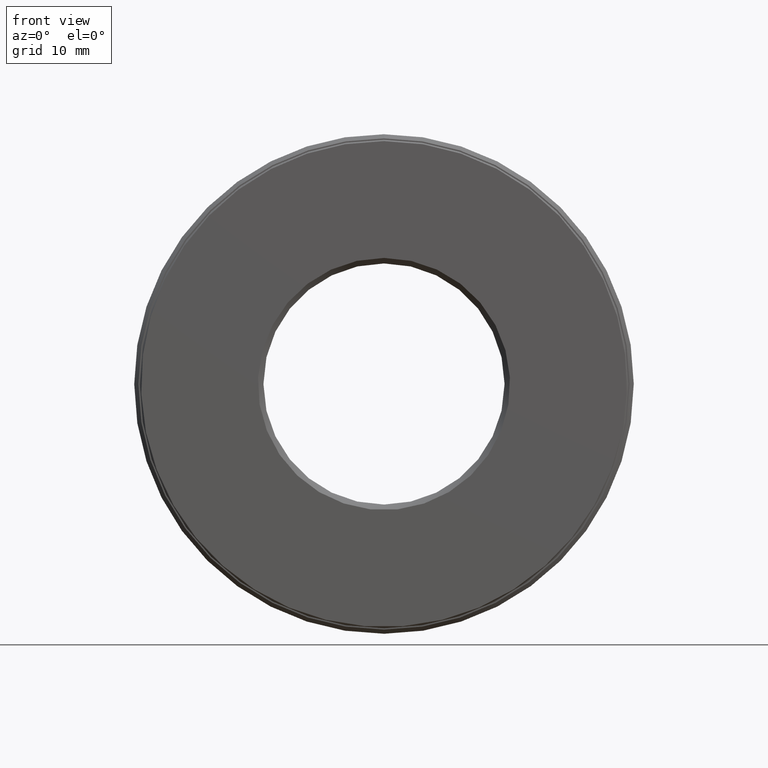
[diagram: clean part render]
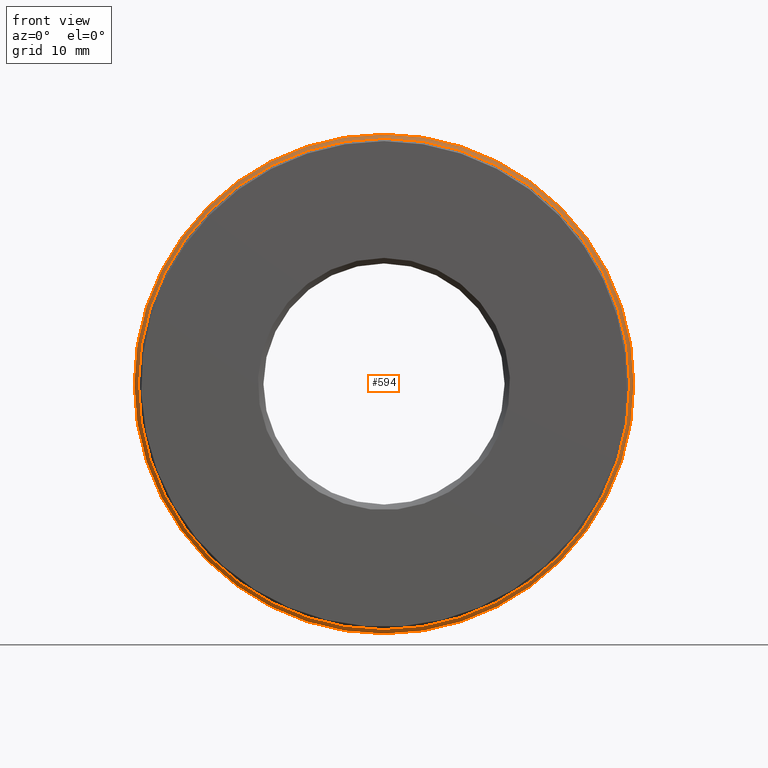
[diagram: same view with one face highlighted and labeled with its STEP entity id]
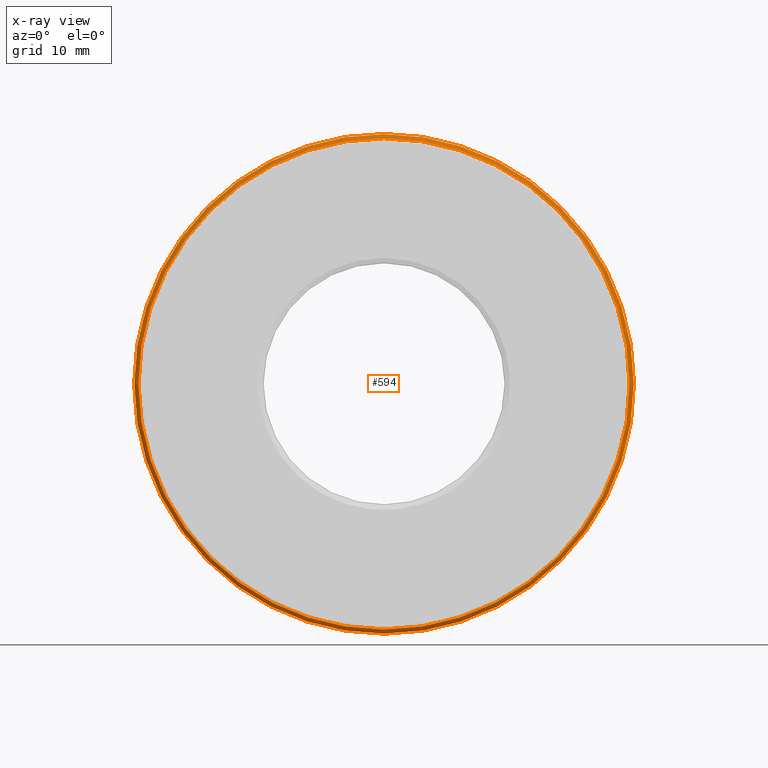
[diagram: x-ray of the same camera — body ghosted, the highlighted face saturated]
A machine part, front view. The second image highlights one B-rep face of the part: STEP entity #594.
The next image is the same camera in x-ray: the body ghosted, the highlighted face saturated — about 0% of this face is hidden behind the body in this view.
In plain terms, the highlighted conical surface has half-angle 45 deg.
Its self-contained STEP definition (entity closure, byte-faithful):
#46 = CARTESIAN_POINT ( 'NONE',  ( 0.0000000000000000000, -5.975917486140575200E-017, 0.0000000000000000000 ) ) ;
#58 = VERTEX_POINT ( 'NONE', #134 ) ;
#68 = EDGE_CURVE ( 'NONE', #509, #509, #540, .T. ) ;
#85 = DIRECTION ( 'NONE',  ( -0.0000000000000000000, 1.000000000000000000, -0.0000000000000000000 ) ) ;
#116 = EDGE_LOOP ( 'NONE', ( #503 ) ) ;
#120 = DIRECTION ( 'NONE',  ( -0.0000000000000000000, 1.000000000000000000, -0.0000000000000000000 ) ) ;
#134 = CARTESIAN_POINT ( 'NONE',  ( 0.0000000000000000000, 0.01500000000000004500, 0.9062499999999998900 ) ) ;
#152 = AXIS2_PLACEMENT_3D ( 'NONE', #261, #120, #178 ) ;
#178 = DIRECTION ( 'NONE',  ( 0.0000000000000000000, 0.0000000000000000000, 1.000000000000000000 ) ) ;
#200 = AXIS2_PLACEMENT_3D ( 'NONE', #558, #85, #376 ) ;
#206 = AXIS2_PLACEMENT_3D ( 'NONE', #46, #555, #327 ) ;
#261 = CARTESIAN_POINT ( 'NONE',  ( 0.0000000000000000000, 0.01500000000000004500, 0.0000000000000000000 ) ) ;
#276 = ORIENTED_EDGE ( 'NONE', *, *, #68, .T. ) ;
#303 = CIRCLE ( 'NONE', #152, 0.9062499999999998900 ) ;
#327 = DIRECTION ( 'NONE',  ( 0.0000000000000000000, 0.0000000000000000000, 1.000000000000000000 ) ) ;
#366 = CARTESIAN_POINT ( 'NONE',  ( 0.0000000000000000000, -5.975917486140575200E-017, 0.8912500000000001000 ) ) ;
#376 = DIRECTION ( 'NONE',  ( 0.0000000000000000000, 0.0000000000000000000, 1.000000000000000000 ) ) ;
#383 = FACE_BOUND ( 'NONE', #562, .T. ) ;
#494 = EDGE_CURVE ( 'NONE', #58, #58, #303, .T. ) ;
#501 = CONICAL_SURFACE ( 'NONE', #206, 0.8912500000000001000, 0.7853981633974394000 ) ;
#503 = ORIENTED_EDGE ( 'NONE', *, *, #494, .F. ) ;
#509 = VERTEX_POINT ( 'NONE', #366 ) ;
#540 = CIRCLE ( 'NONE', #200, 0.8912500000000001000 ) ;
#555 = DIRECTION ( 'NONE',  ( -0.0000000000000000000, 1.000000000000000000, -0.0000000000000000000 ) ) ;
#558 = CARTESIAN_POINT ( 'NONE',  ( 0.0000000000000000000, -5.975917486140575200E-017, 0.0000000000000000000 ) ) ;
#562 = EDGE_LOOP ( 'NONE', ( #276 ) ) ;
#588 = FACE_OUTER_BOUND ( 'NONE', #116, .T. ) ;
#594 = ADVANCED_FACE ( 'NONE', ( #588, #383 ), #501, .T. ) ;